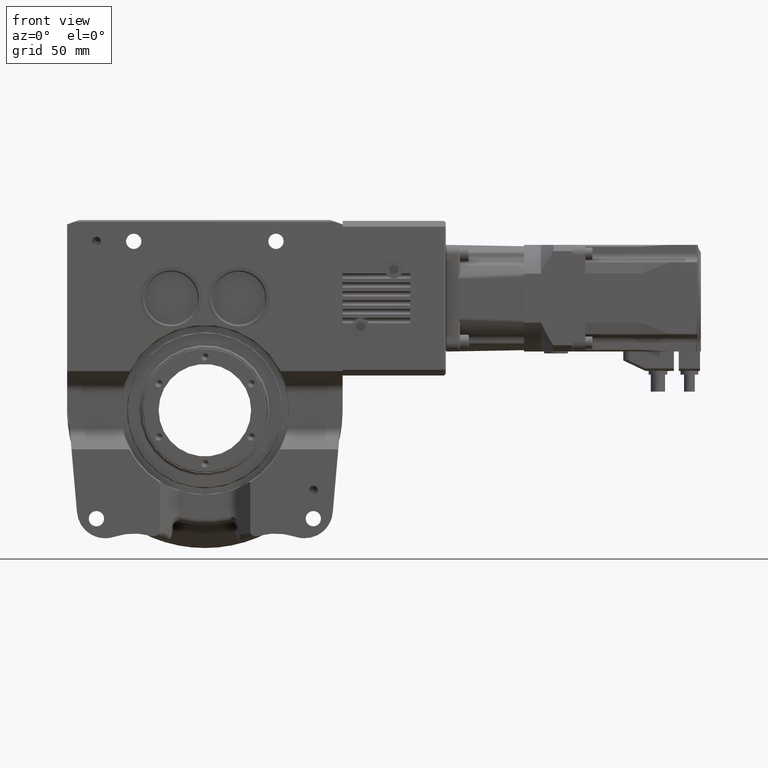
[diagram: clean part render]
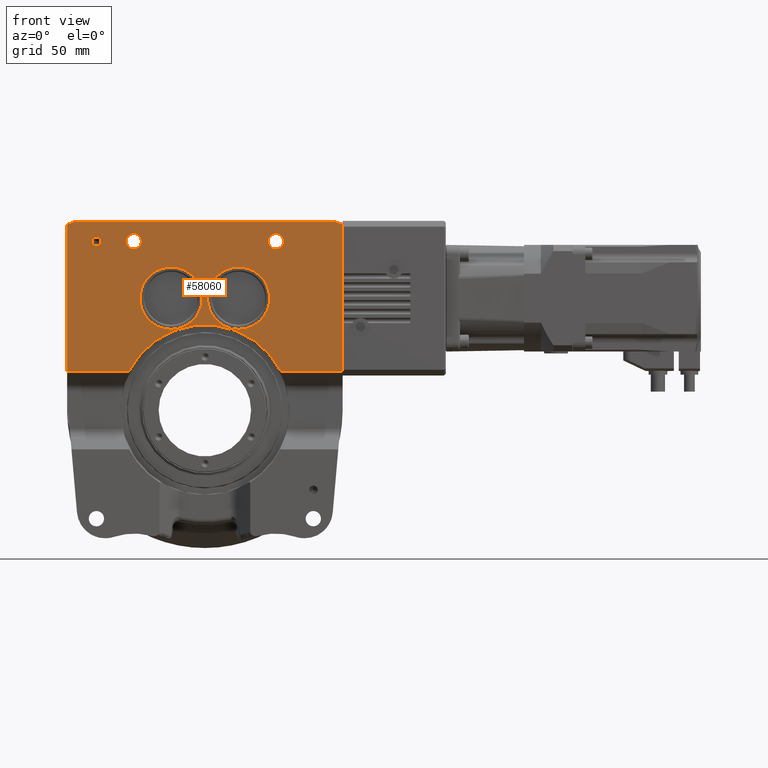
[diagram: same view with one face highlighted and labeled with its STEP entity id]
A machine part, front view. The second image highlights one B-rep face of the part: STEP entity #58060.
In plain terms, the highlighted planar face has unit normal (-0, 1, 0).
Its self-contained STEP definition (entity closure, byte-faithful):
#274 = DIRECTION ( 'NONE',  ( 0.000000000000000000, 0.000000000000000000, -1.000000000000000000 ) ) ;
#521 = VERTEX_POINT ( 'NONE', #75941 ) ;
#1446 = CIRCLE ( 'NONE', #22389, 4.305000000000003268 ) ;
#1457 = CARTESIAN_POINT ( 'NONE',  ( 19.00000000000000000, -36.50000000000000000, 63.00000000000000000 ) ) ;
#1621 = CARTESIAN_POINT ( 'NONE',  ( 40.00000000000000000, -36.50000000000000000, 99.30500000000000682 ) ) ;
#1622 = VERTEX_POINT ( 'NONE', #9405 ) ;
#3071 = LINE ( 'NONE', #53187, #23425 ) ;
#4706 = FACE_BOUND ( 'NONE', #41434, .T. ) ;
#4861 = VERTEX_POINT ( 'NONE', #13132 ) ;
#4878 = CIRCLE ( 'NONE', #42908, 4.305000000000003268 ) ;
#5355 = CARTESIAN_POINT ( 'NONE',  ( 0.000000000000000000, -36.50000000000000000, 0.000000000000000000 ) ) ;
#5568 = EDGE_CURVE ( 'NONE', #1622, #39128, #38911, .T. ) ;
#5819 = ORIENTED_EDGE ( 'NONE', *, *, #78007, .F. ) ;
#6455 = AXIS2_PLACEMENT_3D ( 'NONE', #60279, #29043, #11751 ) ;
#8524 = DIRECTION ( 'NONE',  ( 1.000000000000000000, 1.343011723336881965E-16, -1.343011723336896017E-16 ) ) ;
#9087 = VECTOR ( 'NONE', #8524, 1000.000000000000000 ) ;
#9405 = CARTESIAN_POINT ( 'NONE',  ( 42.66145801540294968, -36.50000000000000000, 22.00000000000000000 ) ) ;
#9945 = VECTOR ( 'NONE', #73134, 1000.000000000000000 ) ;
#10852 = FACE_BOUND ( 'NONE', #46362, .T. ) ;
#10967 = ORIENTED_EDGE ( 'NONE', *, *, #5568, .T. ) ;
#11588 = ORIENTED_EDGE ( 'NONE', *, *, #52667, .T. ) ;
#11726 = EDGE_CURVE ( 'NONE', #34668, #72791, #1446, .T. ) ;
#11751 = DIRECTION ( 'NONE',  ( 0.000000000000000000, 0.000000000000000000, -1.000000000000000000 ) ) ;
#12400 = CARTESIAN_POINT ( 'NONE',  ( 74.12504365534088890, -36.50000000000000000, 105.7283836514038029 ) ) ;
#12610 = DIRECTION ( 'NONE',  ( 0.000000000000000000, 1.000000000000000000, 0.000000000000000000 ) ) ;
#13132 = CARTESIAN_POINT ( 'NONE',  ( 19.00000000000000000, -36.50000000000000000, 80.50000000000000000 ) ) ;
#13436 = DIRECTION ( 'NONE',  ( 0.000000000000000000, 0.000000000000000000, 1.000000000000000000 ) ) ;
#13738 = DIRECTION ( 'NONE',  ( 0.000000000000000000, 0.000000000000000000, 1.000000000000000000 ) ) ;
#14625 = CARTESIAN_POINT ( 'NONE',  ( -61.00000000000000000, -36.50000000000000000, 95.00000000000000000 ) ) ;
#14731 = CARTESIAN_POINT ( 'NONE',  ( -61.00000000000000000, -36.50000000000000000, 97.50000000000000000 ) ) ;
#15161 = EDGE_CURVE ( 'NONE', #34808, #24203, #68707, .T. ) ;
#15862 = VECTOR ( 'NONE', #32731, 1000.000000000000227 ) ;
#16428 = CARTESIAN_POINT ( 'NONE',  ( 77.50000000000000000, -36.50000000000000000, 22.00000000000000000 ) ) ;
#17124 = VERTEX_POINT ( 'NONE', #77872 ) ;
#18311 = ORIENTED_EDGE ( 'NONE', *, *, #78087, .F. ) ;
#19056 = CARTESIAN_POINT ( 'NONE',  ( -77.50000000000000000, -36.50000000000000000, 115.0010000000000048 ) ) ;
#19339 = CARTESIAN_POINT ( 'NONE',  ( 77.50000000000000000, -36.50000000000000000, 104.5000000000000000 ) ) ;
#19767 = ORIENTED_EDGE ( 'NONE', *, *, #15161, .T. ) ;
#19950 = ORIENTED_EDGE ( 'NONE', *, *, #67533, .T. ) ;
#20600 = ORIENTED_EDGE ( 'NONE', *, *, #48391, .F. ) ;
#21053 = VERTEX_POINT ( 'NONE', #43990 ) ;
#22169 = DIRECTION ( 'NONE',  ( 1.000000000000000000, 1.343011723336881965E-16, -1.343011723336896017E-16 ) ) ;
#22339 = CARTESIAN_POINT ( 'NONE',  ( -19.00000000000000000, -36.50000000000000000, 63.00000000000000000 ) ) ;
#22340 = FACE_BOUND ( 'NONE', #38368, .T. ) ;
#22389 = AXIS2_PLACEMENT_3D ( 'NONE', #24556, #62388, #68566 ) ;
#23122 = LINE ( 'NONE', #73284, #15862 ) ;
#23425 = VECTOR ( 'NONE', #65109, 1000.000000000000000 ) ;
#24203 = VERTEX_POINT ( 'NONE', #50242 ) ;
#24483 = DIRECTION ( 'NONE',  ( 0.000000000000000000, -1.000000000000000000, 0.000000000000000000 ) ) ;
#24556 = CARTESIAN_POINT ( 'NONE',  ( -40.00000000000000000, -36.50000000000000000, 95.00000000000000000 ) ) ;
#24754 = ORIENTED_EDGE ( 'NONE', *, *, #32487, .T. ) ;
#25141 = CIRCLE ( 'NONE', #71099, 17.50000000000000000 ) ;
#25428 = CIRCLE ( 'NONE', #34628, 4.305000000000003268 ) ;
#26730 = EDGE_CURVE ( 'NONE', #53214, #62928, #28359, .T. ) ;
#26789 = EDGE_CURVE ( 'NONE', #52600, #35308, #25428, .T. ) ;
#27424 = AXIS2_PLACEMENT_3D ( 'NONE', #5355, #30397, #43114 ) ;
#28359 = LINE ( 'NONE', #16428, #41144 ) ;
#29043 = DIRECTION ( 'NONE',  ( 0.000000000000000000, -1.000000000000000000, 0.000000000000000000 ) ) ;
#29074 = CIRCLE ( 'NONE', #31713, 17.50000000000000000 ) ;
#29587 = DIRECTION ( 'NONE',  ( 0.000000000000000000, 0.000000000000000000, -1.000000000000000000 ) ) ;
#30143 = DIRECTION ( 'NONE',  ( -2.422364041908269558E-48, 1.000000000000000000, 1.803680489020304849E-32 ) ) ;
#30397 = DIRECTION ( 'NONE',  ( -1.445602896647339903E-16, 1.000000000000000000, 0.000000000000000000 ) ) ;
#30833 = ORIENTED_EDGE ( 'NONE', *, *, #67955, .T. ) ;
#30939 = EDGE_CURVE ( 'NONE', #34808, #39128, #53829, .T. ) ;
#31713 = AXIS2_PLACEMENT_3D ( 'NONE', #22339, #35084, #53604 ) ;
#32487 = EDGE_CURVE ( 'NONE', #4861, #79333, #69232, .T. ) ;
#32731 = DIRECTION ( 'NONE',  ( -0.9396926207859102043, -1.262018206048636127E-16, -0.3420201433256635504 ) ) ;
#33120 = DIRECTION ( 'NONE',  ( 0.000000000000000000, -1.000000000000000000, 0.000000000000000000 ) ) ;
#33987 = CIRCLE ( 'NONE', #6455, 4.305000000000003268 ) ;
#34172 = ORIENTED_EDGE ( 'NONE', *, *, #36921, .F. ) ;
#34628 = AXIS2_PLACEMENT_3D ( 'NONE', #60835, #71541, #29587 ) ;
#34668 = VERTEX_POINT ( 'NONE', #52831 ) ;
#34808 = VERTEX_POINT ( 'NONE', #19339 ) ;
#35084 = DIRECTION ( 'NONE',  ( 0.000000000000000000, 1.000000000000000000, 0.000000000000000000 ) ) ;
#35218 = CIRCLE ( 'NONE', #58880, 2.500000000000002220 ) ;
#35308 = VERTEX_POINT ( 'NONE', #1621 ) ;
#35312 = CARTESIAN_POINT ( 'NONE',  ( 77.50000000000000000, -36.50000000000000000, 115.0010000000000048 ) ) ;
#35502 = DIRECTION ( 'NONE',  ( 1.000000000000000000, 0.000000000000000000, 1.343011723336881965E-16 ) ) ;
#36309 = FACE_OUTER_BOUND ( 'NONE', #58689, .T. ) ;
#36709 = CARTESIAN_POINT ( 'NONE',  ( -19.00000000000000000, -36.50000000000000000, 80.50000000000000000 ) ) ;
#36921 = EDGE_CURVE ( 'NONE', #21053, #64530, #68999, .T. ) ;
#37271 = CARTESIAN_POINT ( 'NONE',  ( 19.00000000000000000, -36.50000000000000000, 63.00000000000000000 ) ) ;
#37836 = ORIENTED_EDGE ( 'NONE', *, *, #26730, .T. ) ;
#38368 = EDGE_LOOP ( 'NONE', ( #61846, #71840 ) ) ;
#38911 = LINE ( 'NONE', #51248, #9087 ) ;
#39128 = VERTEX_POINT ( 'NONE', #48810 ) ;
#40405 = CARTESIAN_POINT ( 'NONE',  ( -19.00000000000000000, -36.50000000000000000, 45.50000000000000000 ) ) ;
#41144 = VECTOR ( 'NONE', #22169, 1000.000000000000000 ) ;
#41357 = VECTOR ( 'NONE', #57560, 1000.000000000000227 ) ;
#41434 = EDGE_LOOP ( 'NONE', ( #48348, #24754 ) ) ;
#42062 = PLANE ( 'NONE',  #48275 ) ;
#42908 = AXIS2_PLACEMENT_3D ( 'NONE', #57736, #70476, #274 ) ;
#43114 = DIRECTION ( 'NONE',  ( -1.000000000000000000, -1.445602896647339163E-16, 0.000000000000000000 ) ) ;
#43154 = CARTESIAN_POINT ( 'NONE',  ( -77.50000000000000000, -36.50000000000000000, 22.00000000000000000 ) ) ;
#43599 = EDGE_CURVE ( 'NONE', #55148, #43657, #29074, .T. ) ;
#43657 = VERTEX_POINT ( 'NONE', #36709 ) ;
#43990 = CARTESIAN_POINT ( 'NONE',  ( -61.00000000000000000, -36.50000000000000000, 92.50000000000000000 ) ) ;
#44142 = DIRECTION ( 'NONE',  ( 0.000000000000000000, 0.000000000000000000, -1.000000000000000000 ) ) ;
#46362 = EDGE_LOOP ( 'NONE', ( #34172, #5819 ) ) ;
#47449 = FACE_BOUND ( 'NONE', #77594, .T. ) ;
#48275 = AXIS2_PLACEMENT_3D ( 'NONE', #66736, #30143, #35502 ) ;
#48348 = ORIENTED_EDGE ( 'NONE', *, *, #80055, .T. ) ;
#48391 = EDGE_CURVE ( 'NONE', #72791, #34668, #4878, .T. ) ;
#48810 = CARTESIAN_POINT ( 'NONE',  ( 77.50000000000000000, -36.50000000000000000, 22.00000000000000000 ) ) ;
#49569 = DIRECTION ( 'NONE',  ( 0.000000000000000000, 0.000000000000000000, -1.000000000000000000 ) ) ;
#50242 = CARTESIAN_POINT ( 'NONE',  ( 73.37878387081799758, -36.50000000000000000, 106.0000000000000000 ) ) ;
#51248 = CARTESIAN_POINT ( 'NONE',  ( 77.50000000000000000, -36.50000000000000000, 22.00000000000000000 ) ) ;
#52600 = VERTEX_POINT ( 'NONE', #66323 ) ;
#52667 = EDGE_CURVE ( 'NONE', #521, #17124, #23122, .T. ) ;
#52831 = CARTESIAN_POINT ( 'NONE',  ( -40.00000000000000000, -36.50000000000000000, 90.69499999999999318 ) ) ;
#53187 = CARTESIAN_POINT ( 'NONE',  ( 77.50000000000000000, -36.50000000000000000, 106.0000000000000000 ) ) ;
#53214 = VERTEX_POINT ( 'NONE', #43154 ) ;
#53604 = DIRECTION ( 'NONE',  ( 0.000000000000000000, 0.000000000000000000, 1.000000000000000000 ) ) ;
#53829 = LINE ( 'NONE', #35312, #9945 ) ;
#54559 = AXIS2_PLACEMENT_3D ( 'NONE', #14625, #33120, #64777 ) ;
#55148 = VERTEX_POINT ( 'NONE', #40405 ) ;
#56099 = AXIS2_PLACEMENT_3D ( 'NONE', #37271, #12610, #62350 ) ;
#56493 = VECTOR ( 'NONE', #44142, 1000.000000000000000 ) ;
#57007 = CARTESIAN_POINT ( 'NONE',  ( -19.00000000000000000, -36.50000000000000000, 63.00000000000000000 ) ) ;
#57560 = DIRECTION ( 'NONE',  ( -0.9396926207859102043, -1.262018206048636127E-16, 0.3420201433256635504 ) ) ;
#57736 = CARTESIAN_POINT ( 'NONE',  ( -40.00000000000000000, -36.50000000000000000, 95.00000000000000000 ) ) ;
#58060 = ADVANCED_FACE ( 'NONE', ( #36309, #10852, #47449, #74122, #4706, #22340 ), #42062, .F. ) ;
#58689 = EDGE_LOOP ( 'NONE', ( #37836, #30833, #10967, #68223, #19767, #19950, #11588, #73563 ) ) ;
#58880 = AXIS2_PLACEMENT_3D ( 'NONE', #73026, #24483, #49569 ) ;
#58895 = ORIENTED_EDGE ( 'NONE', *, *, #26789, .F. ) ;
#59372 = CARTESIAN_POINT ( 'NONE',  ( -42.66145801540294968, -36.50000000000000000, 22.00000000000000000 ) ) ;
#60231 = CIRCLE ( 'NONE', #27424, 48.00000000000000000 ) ;
#60279 = CARTESIAN_POINT ( 'NONE',  ( 40.00000000000000000, -36.50000000000000000, 95.00000000000000000 ) ) ;
#60451 = CARTESIAN_POINT ( 'NONE',  ( 19.00000000000000000, -36.50000000000000000, 45.50000000000000000 ) ) ;
#60665 = EDGE_CURVE ( 'NONE', #17124, #53214, #75373, .T. ) ;
#60835 = CARTESIAN_POINT ( 'NONE',  ( 40.00000000000000000, -36.50000000000000000, 95.00000000000000000 ) ) ;
#61846 = ORIENTED_EDGE ( 'NONE', *, *, #43599, .T. ) ;
#62350 = DIRECTION ( 'NONE',  ( 0.000000000000000000, 0.000000000000000000, 1.000000000000000000 ) ) ;
#62388 = DIRECTION ( 'NONE',  ( 0.000000000000000000, -1.000000000000000000, 0.000000000000000000 ) ) ;
#62928 = VERTEX_POINT ( 'NONE', #59372 ) ;
#64530 = VERTEX_POINT ( 'NONE', #14731 ) ;
#64777 = DIRECTION ( 'NONE',  ( 0.000000000000000000, 0.000000000000000000, -1.000000000000000000 ) ) ;
#65109 = DIRECTION ( 'NONE',  ( -1.000000000000000000, -1.343011723336881965E-16, 0.000000000000000000 ) ) ;
#66323 = CARTESIAN_POINT ( 'NONE',  ( 40.00000000000000000, -36.50000000000000000, 90.69499999999999318 ) ) ;
#66736 = CARTESIAN_POINT ( 'NONE',  ( 77.50000000000000000, -36.50000000000000000, 115.0010000000000048 ) ) ;
#67533 = EDGE_CURVE ( 'NONE', #24203, #521, #3071, .T. ) ;
#67955 = EDGE_CURVE ( 'NONE', #62928, #1622, #60231, .T. ) ;
#68223 = ORIENTED_EDGE ( 'NONE', *, *, #30939, .F. ) ;
#68330 = AXIS2_PLACEMENT_3D ( 'NONE', #1457, #77022, #13738 ) ;
#68338 = ORIENTED_EDGE ( 'NONE', *, *, #11726, .F. ) ;
#68566 = DIRECTION ( 'NONE',  ( 0.000000000000000000, 0.000000000000000000, -1.000000000000000000 ) ) ;
#68707 = LINE ( 'NONE', #12400, #41357 ) ;
#68999 = CIRCLE ( 'NONE', #54559, 2.500000000000002220 ) ;
#69232 = CIRCLE ( 'NONE', #56099, 17.50000000000000000 ) ;
#69670 = CIRCLE ( 'NONE', #68330, 17.50000000000000000 ) ;
#69741 = DIRECTION ( 'NONE',  ( 0.000000000000000000, 1.000000000000000000, 0.000000000000000000 ) ) ;
#70268 = EDGE_LOOP ( 'NONE', ( #68338, #20600 ) ) ;
#70476 = DIRECTION ( 'NONE',  ( 0.000000000000000000, -1.000000000000000000, 0.000000000000000000 ) ) ;
#71099 = AXIS2_PLACEMENT_3D ( 'NONE', #57007, #69741, #13436 ) ;
#71541 = DIRECTION ( 'NONE',  ( 0.000000000000000000, -1.000000000000000000, 0.000000000000000000 ) ) ;
#71840 = ORIENTED_EDGE ( 'NONE', *, *, #71923, .T. ) ;
#71923 = EDGE_CURVE ( 'NONE', #43657, #55148, #25141, .T. ) ;
#72389 = CARTESIAN_POINT ( 'NONE',  ( -40.00000000000000000, -36.50000000000000000, 99.30500000000000682 ) ) ;
#72791 = VERTEX_POINT ( 'NONE', #72389 ) ;
#73026 = CARTESIAN_POINT ( 'NONE',  ( -61.00000000000000000, -36.50000000000000000, 95.00000000000000000 ) ) ;
#73134 = DIRECTION ( 'NONE',  ( 0.000000000000000000, 0.000000000000000000, -1.000000000000000000 ) ) ;
#73284 = CARTESIAN_POINT ( 'NONE',  ( 62.74340068638049672, -36.50000000000000000, 155.5444234021099987 ) ) ;
#73563 = ORIENTED_EDGE ( 'NONE', *, *, #60665, .T. ) ;
#74122 = FACE_BOUND ( 'NONE', #70268, .T. ) ;
#75373 = LINE ( 'NONE', #19056, #56493 ) ;
#75941 = CARTESIAN_POINT ( 'NONE',  ( -73.37878387081799758, -36.50000000000000000, 106.0000000000000000 ) ) ;
#77022 = DIRECTION ( 'NONE',  ( 0.000000000000000000, 1.000000000000000000, 0.000000000000000000 ) ) ;
#77594 = EDGE_LOOP ( 'NONE', ( #58895, #18311 ) ) ;
#77872 = CARTESIAN_POINT ( 'NONE',  ( -77.50000000000000000, -36.50000000000000000, 104.5000000000000000 ) ) ;
#78007 = EDGE_CURVE ( 'NONE', #64530, #21053, #35218, .T. ) ;
#78087 = EDGE_CURVE ( 'NONE', #35308, #52600, #33987, .T. ) ;
#79333 = VERTEX_POINT ( 'NONE', #60451 ) ;
#80055 = EDGE_CURVE ( 'NONE', #79333, #4861, #69670, .T. ) ;